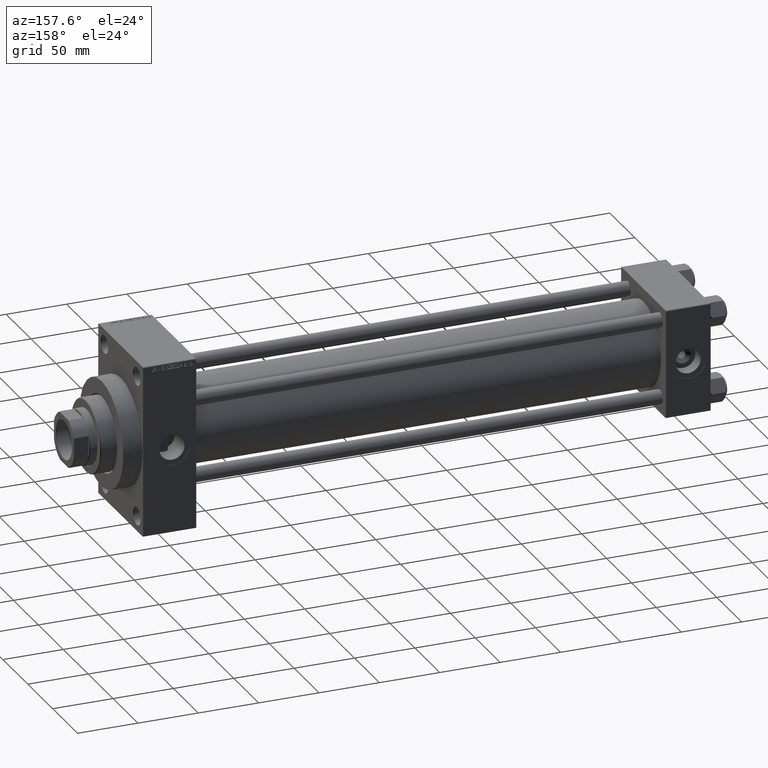
[diagram: clean part render]
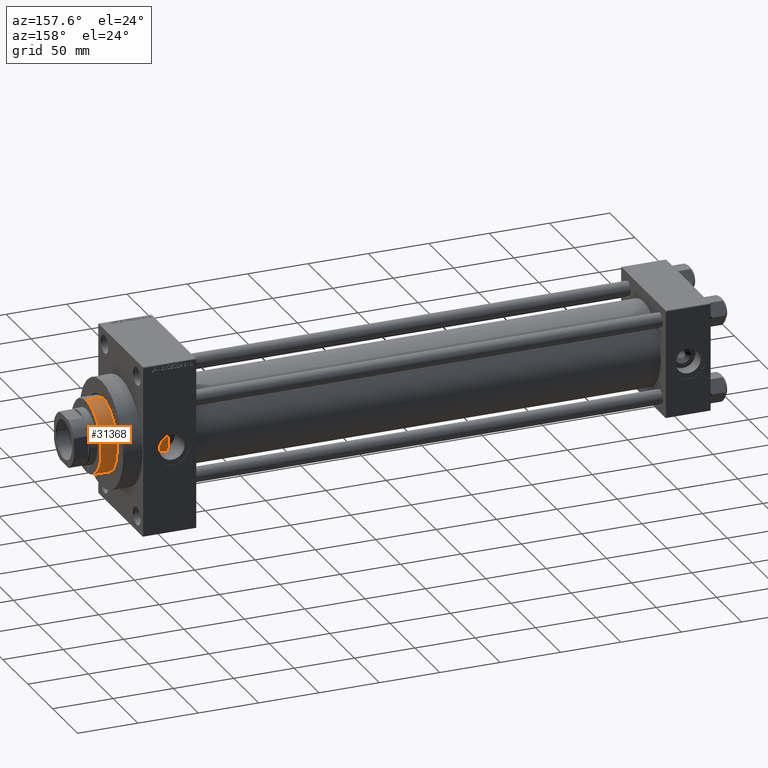
[diagram: same view with one face highlighted and labeled with its STEP entity id]
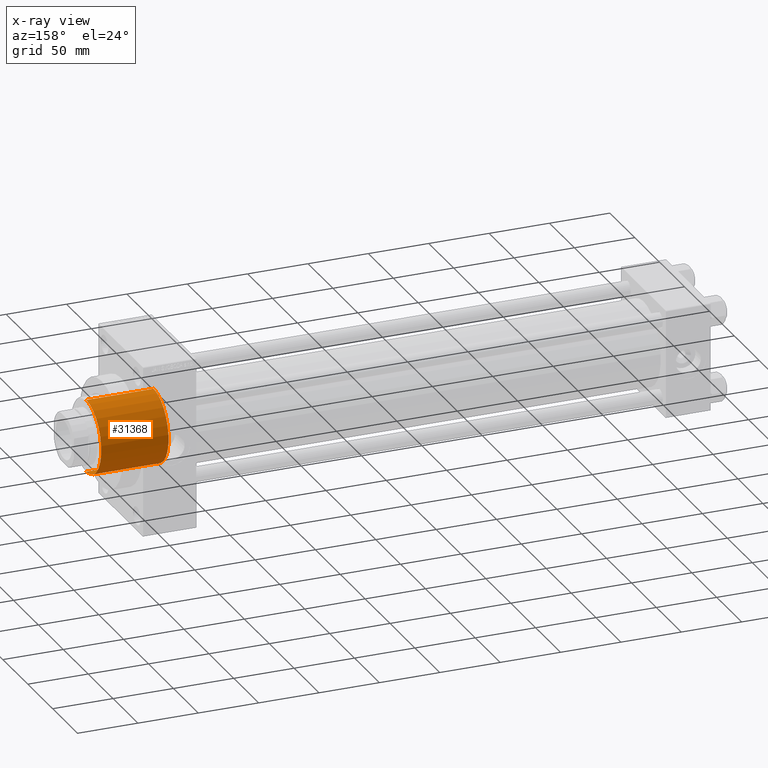
[diagram: x-ray of the same camera — body ghosted, the highlighted face saturated]
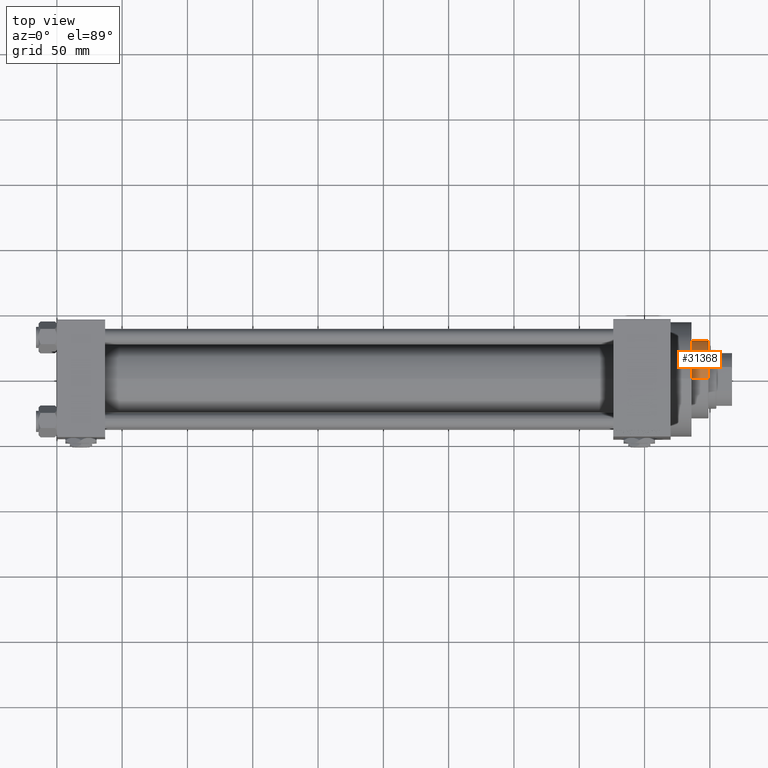
[diagram: same view with one face highlighted and labeled with its STEP entity id]
A machine part, auxiliary view. The second image highlights one B-rep face of the part: STEP entity #31368.
The next image is the same camera in x-ray: the body ghosted, the highlighted face saturated — about 0% of this face is hidden behind the body in this view.
A second angle (top view) of the same face is appended — the face is thin or edge-on in the first view.
In plain terms, the highlighted cylindrical surface (partial cylindrical patch) has radius 30 mm, axis along (-1, 0, 0).
Its self-contained STEP definition (entity closure, byte-faithful):
#247 = DIRECTION ( 'NONE',  ( 0.000000000000000000, 0.000000000000000000, -1.000000000000000000 ) ) ;
#1772 = CARTESIAN_POINT ( 'NONE',  ( 30.00000000000000000, 3.673940397442059178E-15, 0.000000000000000000 ) ) ;
#3977 = AXIS2_PLACEMENT_3D ( 'NONE', #38975, #4874, #20035 ) ;
#4874 = DIRECTION ( 'NONE',  ( -0.000000000000000000, -0.000000000000000000, -1.000000000000000000 ) ) ;
#5152 = CARTESIAN_POINT ( 'NONE',  ( -30.00000000000000000, 0.000000000000000000, 55.75999999999999801 ) ) ;
#5289 = CIRCLE ( 'NONE', #41900, 30.00000000000000000 ) ;
#7727 = CIRCLE ( 'NONE', #34774, 30.00000000000000000 ) ;
#9338 = VECTOR ( 'NONE', #33424, 1000.000000000000000 ) ;
#10888 = VECTOR ( 'NONE', #45662, 1000.000000000000000 ) ;
#11783 = CARTESIAN_POINT ( 'NONE',  ( -30.00000000000000000, 0.000000000000000000, 43.25999999999999801 ) ) ;
#14497 = LINE ( 'NONE', #18227, #9338 ) ;
#15617 = DIRECTION ( 'NONE',  ( 1.000000000000000000, 0.000000000000000000, 0.000000000000000000 ) ) ;
#16652 = ORIENTED_EDGE ( 'NONE', *, *, #39114, .F. ) ;
#16776 = VERTEX_POINT ( 'NONE', #1772 ) ;
#17258 = ORIENTED_EDGE ( 'NONE', *, *, #37671, .T. ) ;
#18227 = CARTESIAN_POINT ( 'NONE',  ( 30.00000000000000000, 3.673940397442059178E-15, 43.25999999999999801 ) ) ;
#18621 = DIRECTION ( 'NONE',  ( 0.000000000000000000, 0.000000000000000000, 1.000000000000000000 ) ) ;
#19368 = DIRECTION ( 'NONE',  ( 1.000000000000000000, 0.000000000000000000, 0.000000000000000000 ) ) ;
#19969 = ORIENTED_EDGE ( 'NONE', *, *, #22194, .T. ) ;
#20035 = DIRECTION ( 'NONE',  ( -1.000000000000000000, 0.000000000000000000, 0.000000000000000000 ) ) ;
#21496 = VERTEX_POINT ( 'NONE', #48434 ) ;
#22194 = EDGE_CURVE ( 'NONE', #21496, #45360, #7727, .T. ) ;
#23771 = CYLINDRICAL_SURFACE ( 'NONE', #3977, 30.00000000000000000 ) ;
#26847 = CARTESIAN_POINT ( 'NONE',  ( 0.000000000000000000, 0.000000000000000000, 55.75999999999999801 ) ) ;
#28743 = FACE_OUTER_BOUND ( 'NONE', #38655, .T. ) ;
#31368 = ADVANCED_FACE ( 'NONE', ( #28743 ), #23771, .T. ) ;
#31902 = ORIENTED_EDGE ( 'NONE', *, *, #36977, .T. ) ;
#33424 = DIRECTION ( 'NONE',  ( -0.000000000000000000, -0.000000000000000000, -1.000000000000000000 ) ) ;
#34774 = AXIS2_PLACEMENT_3D ( 'NONE', #26847, #247, #19368 ) ;
#36977 = EDGE_CURVE ( 'NONE', #41585, #16776, #5289, .T. ) ;
#37671 = EDGE_CURVE ( 'NONE', #45360, #41585, #41197, .T. ) ;
#38655 = EDGE_LOOP ( 'NONE', ( #16652, #19969, #17258, #31902 ) ) ;
#38975 = CARTESIAN_POINT ( 'NONE',  ( 0.000000000000000000, 0.000000000000000000, 43.25999999999999801 ) ) ;
#39114 = EDGE_CURVE ( 'NONE', #21496, #16776, #14497, .T. ) ;
#41197 = LINE ( 'NONE', #11783, #10888 ) ;
#41585 = VERTEX_POINT ( 'NONE', #49236 ) ;
#41900 = AXIS2_PLACEMENT_3D ( 'NONE', #48289, #18621, #15617 ) ;
#45360 = VERTEX_POINT ( 'NONE', #5152 ) ;
#45662 = DIRECTION ( 'NONE',  ( -0.000000000000000000, -0.000000000000000000, -1.000000000000000000 ) ) ;
#48289 = CARTESIAN_POINT ( 'NONE',  ( 0.000000000000000000, 0.000000000000000000, 0.000000000000000000 ) ) ;
#48434 = CARTESIAN_POINT ( 'NONE',  ( 30.00000000000000000, 3.673940397442059178E-15, 55.75999999999999801 ) ) ;
#49236 = CARTESIAN_POINT ( 'NONE',  ( -30.00000000000000000, 0.000000000000000000, 0.000000000000000000 ) ) ;